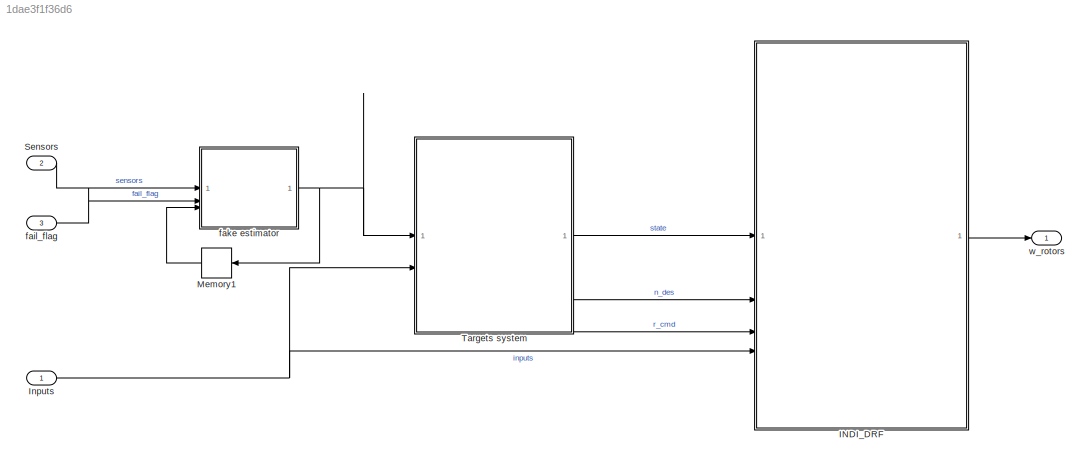
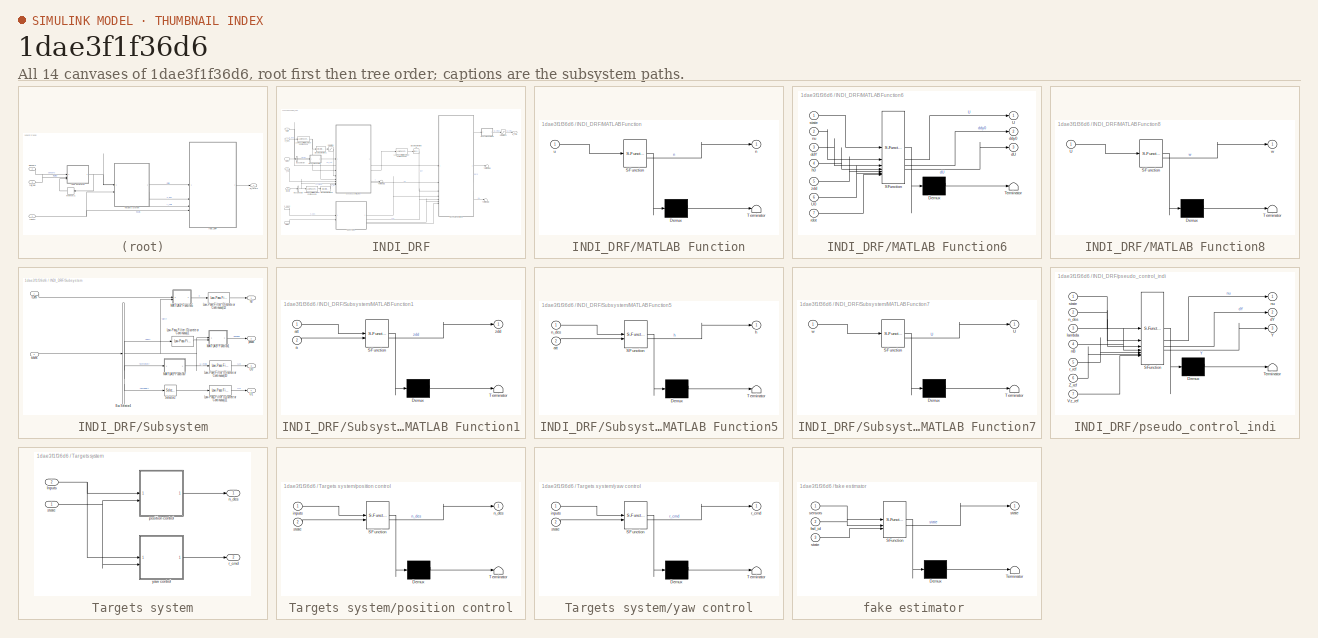
[diagram: thumbnail index - all 14 canvases of the model, root first then tree order]
MODEL slx_1dae3f1f36d6
KIND model
CONFIG AbsTol = auto
CONFIG EnableMultiTasking = off
CONFIG FixedStep = 1/par.freq
CONFIG MaxStep = auto
CONFIG MinStep = auto
CONFIG RelTol = 1e-3
CONFIG SampleTimeConstraint = Unconstrained
CONFIG SolverName = FixedStepDiscrete
CONFIG StartTime = 0.0
CONFIG StopTime = 10.0
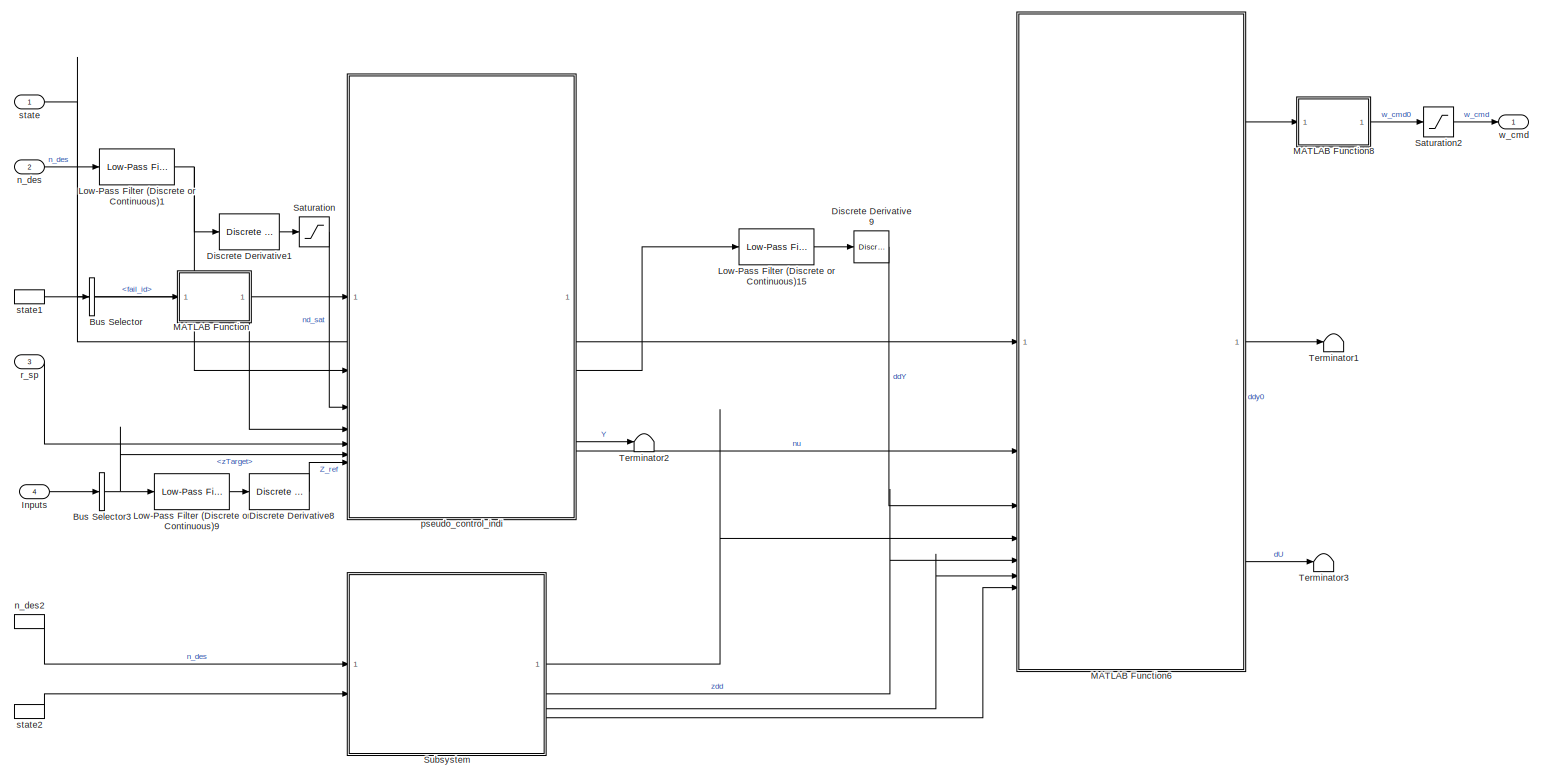
[diagram: INDI_DRF - part 1/1, most of the canvas]
BLOCK [SubSystem] INDI_DRF
  AncestorBlock = INDI/INDI_DRF
  LibrarySourceBlock = INDI/INDI_DRF
BLOCK [BusSelector] INDI_DRF/Bus Selector
  OutputSignals = fail_id
BLOCK [BusSelector] INDI_DRF/Bus Selector3
  OutputSignals = zTarget
BLOCK [Reference] INDI_DRF/Discrete Derivative1  REF=simulink/Discrete/Discrete Derivative
  SourceBlock = simulink/Discrete/Discrete Derivative
  SourceType = Discrete Derivative
BLOCK [Reference] INDI_DRF/Discrete Derivative8  REF=simulink/Discrete/Discrete Derivative
  SourceBlock = simulink/Discrete/Discrete Derivative
  SourceType = Discrete Derivative
BLOCK [Reference] INDI_DRF/Discrete Derivative9  REF=simulink/Discrete/Discrete Derivative
  SourceBlock = simulink/Discrete/Discrete Derivative
  SourceType = Discrete Derivative
BLOCK [Inport] INDI_DRF/Inputs
  Port = 4
BLOCK [Reference] INDI_DRF/Low-Pass Filter (Discrete or Continuous)1  REF=eeGeneralControl/Low-Pass Filter
(Discrete or Continuous)
  SourceBlock = eeGeneralControl/Low-Pass Filter\n(Discrete or Continuous)
  SourceType = Low-Pass Filter (Discrete or Continuous)
BLOCK [Reference] INDI_DRF/Low-Pass Filter (Discrete or Continuous)15  REF=eeGeneralControl/Low-Pass Filter
(Discrete or Continuous)
  SourceBlock = eeGeneralControl/Low-Pass Filter\n(Discrete or Continuous)
  SourceType = Low-Pass Filter (Discrete or Continuous)
BLOCK [Reference] INDI_DRF/Low-Pass Filter (Discrete or Continuous)9  REF=eeGeneralControl/Low-Pass Filter
(Discrete or Continuous)
  SourceBlock = eeGeneralControl/Low-Pass Filter\n(Discrete or Continuous)
  SourceType = Low-Pass Filter (Discrete or Continuous)
BLOCK [SubSystem] INDI_DRF/MATLAB Function
  ErrorFcn = Stateflow.Translate.translate
  PermitHierarchicalResolution = ExplicitOnly
  SFBlockType = MATLAB Function
  TreatAsAtomicUnit = on
BLOCK [Demux] INDI_DRF/MATLAB Function/ Demux 
  Outputs = 1
BLOCK [S-Function] INDI_DRF/MATLAB Function/ SFunction 
  EnableBusSupport = on
  FunctionName = sf_sfun
  Parameters = par
  PortCounts = [1 2]
  SFcnIsStateOwnerBlock = off
  SFunctionDeploymentMode = off
  Tag = Stateflow S-Function 1
BLOCK [Terminator] INDI_DRF/MATLAB Function/ Terminator 
BLOCK [Outport] INDI_DRF/MATLAB Function/n
  VectorParamsAs1DForOutWhenUnconnected = off
BLOCK [Inport] INDI_DRF/MATLAB Function/u
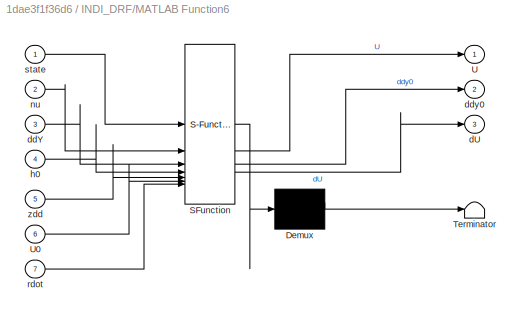
BLOCK [SubSystem] INDI_DRF/MATLAB Function6
  ErrorFcn = Stateflow.Translate.translate
  PermitHierarchicalResolution = ExplicitOnly
  SFBlockType = MATLAB Function
  TreatAsAtomicUnit = on
BLOCK [Demux] INDI_DRF/MATLAB Function6/ Demux 
  Outputs = 1
BLOCK [S-Function] INDI_DRF/MATLAB Function6/ SFunction 
  EnableBusSupport = on
  FunctionName = sf_sfun
  Parameters = par
  PortCounts = [7 4]
  SFcnIsStateOwnerBlock = off
  SFunctionDeploymentMode = off
  Tag = Stateflow S-Function 5
BLOCK [Terminator] INDI_DRF/MATLAB Function6/ Terminator 
BLOCK [Outport] INDI_DRF/MATLAB Function6/U
  VectorParamsAs1DForOutWhenUnconnected = off
BLOCK [Inport] INDI_DRF/MATLAB Function6/U0
  Port = 6
BLOCK [Outport] INDI_DRF/MATLAB Function6/dU
  Port = 3
BLOCK [Inport] INDI_DRF/MATLAB Function6/ddY
  Port = 3
BLOCK [Outport] INDI_DRF/MATLAB Function6/ddy0
  Port = 2
  VectorParamsAs1DForOutWhenUnconnected = off
BLOCK [Inport] INDI_DRF/MATLAB Function6/h0
  Port = 4
BLOCK [Inport] INDI_DRF/MATLAB Function6/nu
  Port = 2
BLOCK [Inport] INDI_DRF/MATLAB Function6/rdot
  Port = 7
BLOCK [Inport] INDI_DRF/MATLAB Function6/state
BLOCK [Inport] INDI_DRF/MATLAB Function6/zdd
  Port = 5
BLOCK [SubSystem] INDI_DRF/MATLAB Function8
  ErrorFcn = Stateflow.Translate.translate
  PermitHierarchicalResolution = ExplicitOnly
  SFBlockType = MATLAB Function
  TreatAsAtomicUnit = on
BLOCK [Demux] INDI_DRF/MATLAB Function8/ Demux 
  Outputs = 1
BLOCK [S-Function] INDI_DRF/MATLAB Function8/ SFunction 
  EnableBusSupport = on
  FunctionName = sf_sfun
  PortCounts = [1 2]
  SFcnIsStateOwnerBlock = off
  SFunctionDeploymentMode = off
  Tag = Stateflow S-Function 7
BLOCK [Terminator] INDI_DRF/MATLAB Function8/ Terminator 
BLOCK [Inport] INDI_DRF/MATLAB Function8/U
BLOCK [Outport] INDI_DRF/MATLAB Function8/w
  VectorParamsAs1DForOutWhenUnconnected = off
BLOCK [Saturate] INDI_DRF/Saturation
BLOCK [Saturate] INDI_DRF/Saturation2
  LowerLimit = par.w_min
  UpperLimit = par.w_max
BLOCK [SubSystem] INDI_DRF/Subsystem
BLOCK [BusSelector] INDI_DRF/Subsystem/Bus Selector4
  OutputSignals = att,acc,wRotor,omegaf
BLOCK [Reference] INDI_DRF/Subsystem/Low-Pass Filter (Discrete or Continuous)1  REF=eeGeneralControl/Low-Pass Filter
(Discrete or Continuous)
  SourceBlock = eeGeneralControl/Low-Pass Filter\n(Discrete or Continuous)
  SourceType = Low-Pass Filter (Discrete or Continuous)
BLOCK [Reference] INDI_DRF/Subsystem/Low-Pass Filter (Discrete or Continuous)10  REF=eeGeneralControl/Low-Pass Filter
(Discrete or Continuous)
  SourceBlock = eeGeneralControl/Low-Pass Filter\n(Discrete or Continuous)
  SourceType = Low-Pass Filter (Discrete or Continuous)
BLOCK [Reference] INDI_DRF/Subsystem/Low-Pass Filter (Discrete or Continuous)11  REF=eeGeneralControl/Low-Pass Filter
(Discrete or Continuous)
  SourceBlock = eeGeneralControl/Low-Pass Filter\n(Discrete or Continuous)
  SourceType = Low-Pass Filter (Discrete or Continuous)
BLOCK [Reference] INDI_DRF/Subsystem/Low-Pass Filter (Discrete or Continuous)12  REF=eeGeneralControl/Low-Pass Filter
(Discrete or Continuous)
  SourceBlock = eeGeneralControl/Low-Pass Filter\n(Discrete or Continuous)
  SourceType = Low-Pass Filter (Discrete or Continuous)
BLOCK [SubSystem] INDI_DRF/Subsystem/MATLAB Function1
  ErrorFcn = Stateflow.Translate.translate
  PermitHierarchicalResolution = ExplicitOnly
  SFBlockType = MATLAB Function
  TreatAsAtomicUnit = on
BLOCK [Demux] INDI_DRF/Subsystem/MATLAB Function1/ Demux 
  Outputs = 1
BLOCK [S-Function] INDI_DRF/Subsystem/MATLAB Function1/ SFunction 
  EnableBusSupport = on
  FunctionName = sf_sfun
  PortCounts = [2 2]
  SFcnIsStateOwnerBlock = off
  SFunctionDeploymentMode = off
  Tag = Stateflow S-Function 6
BLOCK [Terminator] INDI_DRF/Subsystem/MATLAB Function1/ Terminator 
BLOCK [Inport] INDI_DRF/Subsystem/MATLAB Function1/a
  Port = 2
BLOCK [Inport] INDI_DRF/Subsystem/MATLAB Function1/att
BLOCK [Outport] INDI_DRF/Subsystem/MATLAB Function1/zdd
  VectorParamsAs1DForOutWhenUnconnected = off
BLOCK [SubSystem] INDI_DRF/Subsystem/MATLAB Function5
  ErrorFcn = Stateflow.Translate.translate
  PermitHierarchicalResolution = ExplicitOnly
  SFBlockType = MATLAB Function
  TreatAsAtomicUnit = on
BLOCK [Demux] INDI_DRF/Subsystem/MATLAB Function5/ Demux 
  Outputs = 1
BLOCK [S-Function] INDI_DRF/Subsystem/MATLAB Function5/ SFunction 
  EnableBusSupport = on
  FunctionName = sf_sfun
  PortCounts = [2 2]
  SFcnIsStateOwnerBlock = off
  SFunctionDeploymentMode = off
  Tag = Stateflow S-Function 8
BLOCK [Terminator] INDI_DRF/Subsystem/MATLAB Function5/ Terminator 
BLOCK [Inport] INDI_DRF/Subsystem/MATLAB Function5/att
  Port = 2
BLOCK [Outport] INDI_DRF/Subsystem/MATLAB Function5/h
  VectorParamsAs1DForOutWhenUnconnected = off
BLOCK [Inport] INDI_DRF/Subsystem/MATLAB Function5/n_des
BLOCK [SubSystem] INDI_DRF/Subsystem/MATLAB Function7
  ErrorFcn = Stateflow.Translate.translate
  NameLocation = top
  PermitHierarchicalResolution = ExplicitOnly
  SFBlockType = MATLAB Function
  TreatAsAtomicUnit = on
BLOCK [Demux] INDI_DRF/Subsystem/MATLAB Function7/ Demux 
  Outputs = 1
BLOCK [S-Function] INDI_DRF/Subsystem/MATLAB Function7/ SFunction 
  EnableBusSupport = on
  FunctionName = sf_sfun
  PortCounts = [1 2]
  SFcnIsStateOwnerBlock = off
  SFunctionDeploymentMode = off
  Tag = Stateflow S-Function 9
BLOCK [Terminator] INDI_DRF/Subsystem/MATLAB Function7/ Terminator 
BLOCK [Outport] INDI_DRF/Subsystem/MATLAB Function7/U
  VectorParamsAs1DForOutWhenUnconnected = off
BLOCK [Inport] INDI_DRF/Subsystem/MATLAB Function7/w
BLOCK [Selector] INDI_DRF/Subsystem/Selector2
  IndexOptions = Index vector (dialog)
  Indices = 3
  InputPortWidth = 3
  OutputSizes = 1
BLOCK [Outport] INDI_DRF/Subsystem/U0
  Port = 3
  VectorParamsAs1DForOutWhenUnconnected = off
BLOCK [Outport] INDI_DRF/Subsystem/U1
  Port = 4
  VectorParamsAs1DForOutWhenUnconnected = off
BLOCK [Outport] INDI_DRF/Subsystem/h0
  VectorParamsAs1DForOutWhenUnconnected = off
BLOCK [Inport] INDI_DRF/Subsystem/n_des
BLOCK [Outport] INDI_DRF/Subsystem/posdd
  Port = 2
  VectorParamsAs1DForOutWhenUnconnected = off
BLOCK [Inport] INDI_DRF/Subsystem/states
  Port = 2
BLOCK [Terminator] INDI_DRF/Terminator1
BLOCK [Terminator] INDI_DRF/Terminator2
BLOCK [Terminator] INDI_DRF/Terminator3
BLOCK [Inport] INDI_DRF/n_des
  Port = 2
  PortDimensions = 3
BLOCK [InportShadow] INDI_DRF/n_des2
  Port = 2
  PortDimensions = 3
BLOCK [SubSystem] INDI_DRF/pseudo_control_indi
  ErrorFcn = Stateflow.Translate.translate
  PermitHierarchicalResolution = ExplicitOnly
  SFBlockType = MATLAB Function
  TreatAsAtomicUnit = on
BLOCK [Demux] INDI_DRF/pseudo_control_indi/ Demux 
  Outputs = 1
BLOCK [S-Function] INDI_DRF/pseudo_control_indi/ SFunction 
  EnableBusSupport = on
  FunctionName = sf_sfun
  Parameters = par
  PortCounts = [7 4]
  SFcnIsStateOwnerBlock = off
  SFunctionDeploymentMode = off
  Tag = Stateflow S-Function 10
BLOCK [Terminator] INDI_DRF/pseudo_control_indi/ Terminator 
BLOCK [Inport] INDI_DRF/pseudo_control_indi/Vz_ref
  Port = 7
BLOCK [Outport] INDI_DRF/pseudo_control_indi/Y
  Port = 3
  VectorParamsAs1DForOutWhenUnconnected = off
BLOCK [Inport] INDI_DRF/pseudo_control_indi/Z_ref
  Port = 6
BLOCK [Outport] INDI_DRF/pseudo_control_indi/dY
  Port = 2
  VectorParamsAs1DForOutWhenUnconnected = off
BLOCK [Inport] INDI_DRF/pseudo_control_indi/lambda
  Port = 3
BLOCK [Inport] INDI_DRF/pseudo_control_indi/nB
  Port = 4
BLOCK [Inport] INDI_DRF/pseudo_control_indi/n_des
  Port = 2
BLOCK [Outport] INDI_DRF/pseudo_control_indi/nu
  VectorParamsAs1DForOutWhenUnconnected = off
BLOCK [Inport] INDI_DRF/pseudo_control_indi/r_ref
  Port = 5
BLOCK [Inport] INDI_DRF/pseudo_control_indi/state
BLOCK [Inport] INDI_DRF/r_sp
  Port = 3
BLOCK [Inport] INDI_DRF/state
BLOCK [InportShadow] INDI_DRF/state1
BLOCK [InportShadow] INDI_DRF/state2
BLOCK [Outport] INDI_DRF/w_cmd
  VectorParamsAs1DForOutWhenUnconnected = off
BLOCK [Inport] Inputs
  OutDataTypeStr = Bus: inputsBus
BLOCK [Memory] Memory1
  NameLocation = top
BLOCK [Inport] Sensors
  OutDataTypeStr = Bus: sensorsBus
  Port = 2
BLOCK [SubSystem] Targets system
BLOCK [Inport] Targets system/Inputs
  Port = 2
BLOCK [Outport] Targets system/n_des
  VectorParamsAs1DForOutWhenUnconnected = off
BLOCK [SubSystem] Targets system/position control
  ErrorFcn = Stateflow.Translate.translate
  PermitHierarchicalResolution = ExplicitOnly
  SFBlockType = MATLAB Function
  TreatAsAtomicUnit = on
BLOCK [Demux] Targets system/position control/ Demux 
  Outputs = 1
BLOCK [S-Function] Targets system/position control/ SFunction 
  EnableBusSupport = on
  FunctionName = sf_sfun
  Parameters = par
  PortCounts = [2 2]
  SFcnIsStateOwnerBlock = off
  SFunctionDeploymentMode = off
  Tag = Stateflow S-Function 2
BLOCK [Terminator] Targets system/position control/ Terminator 
BLOCK [Inport] Targets system/position control/inputs
BLOCK [Outport] Targets system/position control/n_des
  VectorParamsAs1DForOutWhenUnconnected = off
BLOCK [Inport] Targets system/position control/state
  Port = 2
BLOCK [Outport] Targets system/r_cmd
  Port = 2
  VectorParamsAs1DForOutWhenUnconnected = off
BLOCK [Inport] Targets system/state
BLOCK [SubSystem] Targets system/yaw control
  ErrorFcn = Stateflow.Translate.translate
  PermitHierarchicalResolution = ExplicitOnly
  SFBlockType = MATLAB Function
  TreatAsAtomicUnit = on
BLOCK [Demux] Targets system/yaw control/ Demux 
  Outputs = 1
BLOCK [S-Function] Targets system/yaw control/ SFunction 
  EnableBusSupport = on
  FunctionName = sf_sfun
  Parameters = par
  PortCounts = [2 2]
  SFcnIsStateOwnerBlock = off
  SFunctionDeploymentMode = off
  Tag = Stateflow S-Function 3
BLOCK [Terminator] Targets system/yaw control/ Terminator 
BLOCK [Inport] Targets system/yaw control/inputs
BLOCK [Outport] Targets system/yaw control/r_cmd
  VectorParamsAs1DForOutWhenUnconnected = off
BLOCK [Inport] Targets system/yaw control/state
  Port = 2
BLOCK [Inport] fail_flag
  OutDataTypeStr = double
  Port = 3
  PortDimensions = 1
BLOCK [SubSystem] fake estimator 
  ErrorFcn = Stateflow.Translate.translate
  PermitHierarchicalResolution = ExplicitOnly
  SFBlockType = MATLAB Function
  TreatAsAtomicUnit = on
BLOCK [Demux] fake estimator / Demux 
  Outputs = 1
BLOCK [S-Function] fake estimator / SFunction 
  EnableBusSupport = on
  FunctionName = sf_sfun
  PortCounts = [3 2]
  SFcnIsStateOwnerBlock = off
  SFunctionDeploymentMode = off
  Tag = Stateflow S-Function 4
BLOCK [Terminator] fake estimator / Terminator 
BLOCK [Inport] fake estimator /fail_id
  Port = 2
BLOCK [Inport] fake estimator /sensors
BLOCK [Outport] fake estimator /state
  VectorParamsAs1DForOutWhenUnconnected = off
BLOCK [Inport] fake estimator /state 
  Port = 3
BLOCK [Outport] w_rotors
  VectorParamsAs1DForOutWhenUnconnected = off
LINE INDI_DRF:1 -> w_rotors:1
NET Inputs:1 -> INDI_DRF:4, Targets system:2
LINE Memory1:1 -> fake estimator :3
LINE Sensors:1 -> fake estimator :1
NET Targets system/Inputs:1 -> Targets system/position control:1, Targets system/yaw control:1
LINE Targets system/position control:1 -> Targets system/n_des:1
NET Targets system/state:1 -> Targets system/position control:2, Targets system/yaw control:2
LINE Targets system/yaw control:1 -> Targets system/r_cmd:1
LINE Targets system:1 -> INDI_DRF:2
LINE Targets system:2 -> INDI_DRF:3
LINE fail_flag:1 -> fake estimator :2
NET fake estimator :1 -> INDI_DRF:1, Memory1:1, Targets system:1
note: NET lines group one-source signal fan-out (src -> all destinations, sorted); 1:1 wires keep LINE
CHART INDI_DRF/pseudo_control_indi states=1 transitions=1
  STATE_LABEL 'eML_blk_kernel()'
  STATE_LABEL 'SCRIPT:\nfunction [nu,dY, Y] = pseudo_control_att_indi(state, n_des, lambda, nB, r_ref, Z_ref, Vz_ref, par)\n\n[nu, dY, Y] = pseudo_control_att_indi(state, n_des, lambda, nB, r_ref, Z_ref, Vz_ref, par);\n\nend'
CHART INDI_DRF/MATLAB Function states=1 transitions=1
  STATE_LABEL 'eML_blk_kernel()'
  STATE_LABEL 'SCRIPT:\nfunction n = fcn(u,par)\n\na = par.axis_tilt;\n\nif par.DRF_enable == 0 || par.DRF_enable == 1 \n    if u == 1\n       n = [-a, a, -1];   \n    elseif u == 2\n       n = [-a, -a, -1];\n    elseif u == 3\n       n = [a, -a, -1];\n    elseif u == 4\n       n = [a, a, -1];\n    else\n       n = [0, 0, -1];    \n    end\nelse\n   n = [0, 0, -1];\nend\n\n\n'
CHART Targets system/position control states=1 transitions=1
  STATE_LABEL 'eML_blk_kernel()'
  STATE_LABEL 'SCRIPT:\nfunction n_des   = positionControl(inputs, state, par)\n\n[n_des] = URpositionControl(inputs, state, par);\n\nend\n'
CHART Targets system/yaw control states=1 transitions=1
  STATE_LABEL 'eML_blk_kernel()'
  STATE_LABEL 'SCRIPT:\nfunction r_cmd = yawControl(inputs, state, par)\n\n[r_cmd] = URYawControl(inputs, state, par);\n\nend\n'
CHART fake estimator  states=1 transitions=1
  STATE_LABEL 'eML_blk_kernel()'
  STATE_LABEL 'SCRIPT:\nfunction state = fcn(sensors, fail_id, state)\n\nstate = UREstimators(sensors, state, fail_id);\n\nend\n'
CHART INDI_DRF/MATLAB Function6 states=1 transitions=1
  STATE_LABEL 'eML_blk_kernel()'
  STATE_LABEL 'SCRIPT:\nfunction [U,ddy0,dU]  =  allocation_att_indi(state, nu, ddY, h0, zdd, U0, rdot, par)\n    [U,ddy0,dU]  =  allocation_att_indi(state, nu, ddY, h0, zdd, U0, rdot, par);\nend'
CHART INDI_DRF/Subsystem/MATLAB Function1 states=1 transitions=1
  STATE_LABEL 'eML_blk_kernel()'
  STATE_LABEL 'SCRIPT:\nfunction zdd = fcn(att,a)\n\nphi = att(1);\ntheta = att(2);\npsi = att(3);\n\nR = eul2rotm([psi, theta ,phi]);\n\nf = R * a(:);\nzdd = f(3) + 9.8124;\n\n% zdd = az*cos(theta)*cos(phi) + 9.8124;'
CHART INDI_DRF/MATLAB Function8 states=1 transitions=1
  STATE_LABEL 'eML_blk_kernel()'
  STATE_LABEL 'SCRIPT:\nfunction w = U2omega(U)\n%#codegen\n\nw = zeros(4,1);\nw(1) = sqrt(abs(U(1)))*sign(U(1));\nw(2) = sqrt(abs(U(2)))*sign(U(2));\nw(3) = sqrt(abs(U(3)))*sign(U(3));\nw(4) = sqrt(abs(U(4)))*sign(U(4));\n\nend'
CHART INDI_DRF/Subsystem/MATLAB Function5 states=1 transitions=1
  STATE_LABEL 'eML_blk_kernel()'
  STATE_LABEL 'SCRIPT:\nfunction h = fcn(n_des, att)\n\nphi = att(1);\ntheta = att(2);\npsi = att(3);\n\nR_IB = [cos(psi)*cos(theta) , cos(psi)*sin(theta)*sin(phi)-sin(psi)*cos(phi), cos(psi)*sin(theta)*cos(phi)+sin(psi)*sin(phi);\n        sin(psi)*cos(theta) , sin(psi)*sin(theta)*sin(phi)+cos(psi)*cos(phi), sin(psi)*sin(theta)*cos(phi)-cos(psi)*sin(phi);\n        -sin(theta)          , cos(theta)*sin(phi)               ...<+80ch>'
CHART INDI_DRF/Subsystem/MATLAB Function7 states=1 transitions=1
  STATE_LABEL 'eML_blk_kernel()'
  STATE_LABEL 'SCRIPT:\nfunction U = omega2U(w)\n%#codegen\n\nU = zeros(4,1);\nU(1) = w(1)^2;\nU(2) = w(2)^2;\nU(3) = w(3)^2;\nU(4) = w(4)^2;\nend'
CHART  states=0 transitions=0
CHART  states=0 transitions=0
CHART  states=0 transitions=0
CHART  states=0 transitions=0
CHART  states=0 transitions=0
CHART  states=0 transitions=0
CHART  states=0 transitions=0
CHART  states=0 transitions=0
CHART  states=0 transitions=0
CHART  states=0 transitions=0
